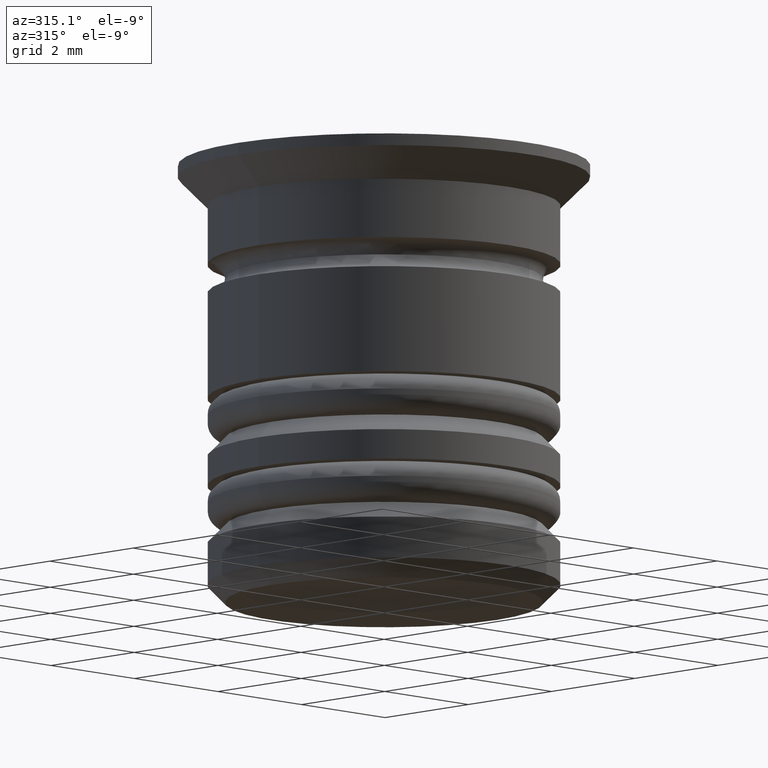
[diagram: clean part render]
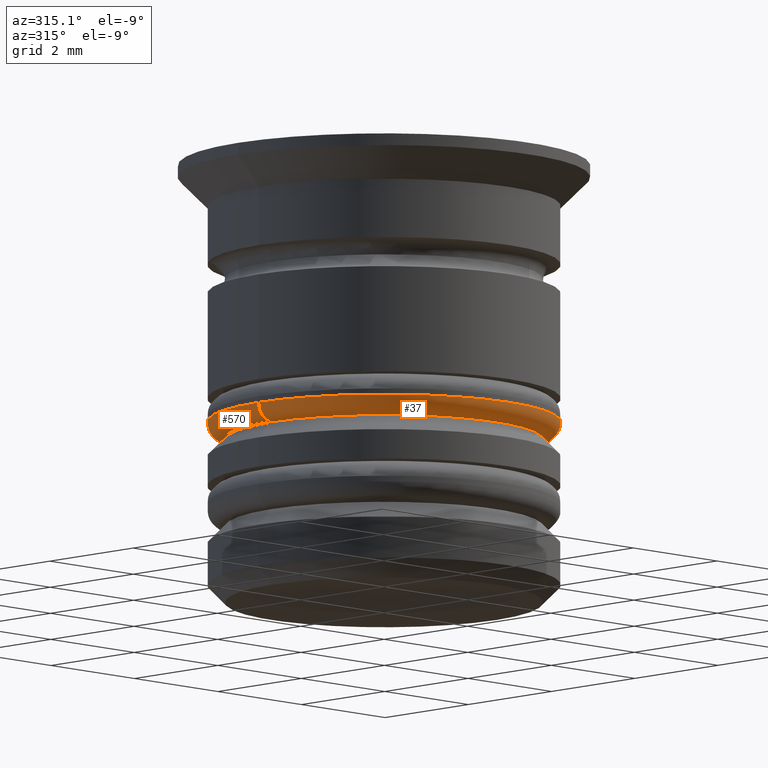
[diagram: same view with one multi-face feature highlighted, each face labeled with its STEP entity id]
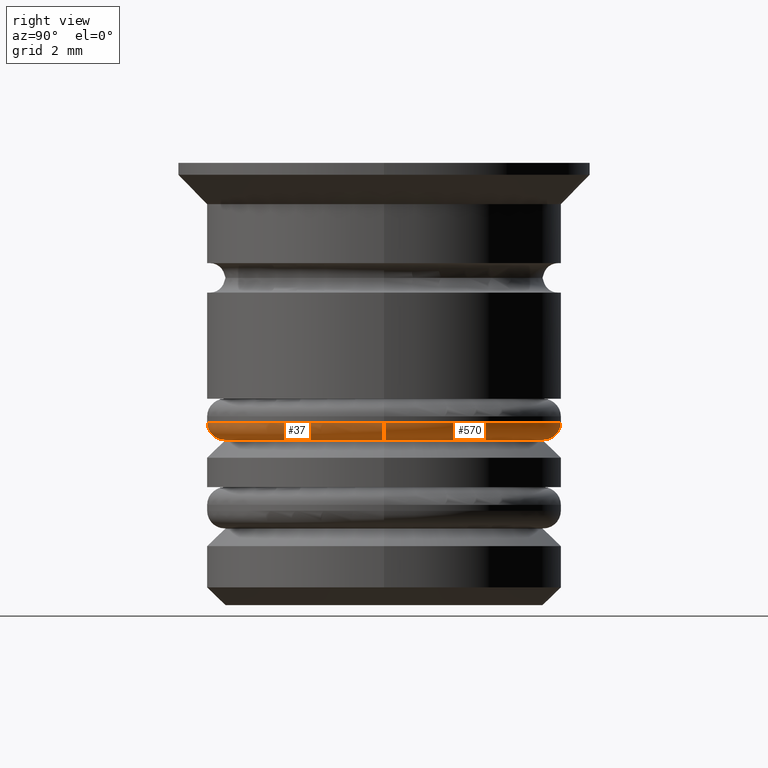
[diagram: same view with one multi-face feature highlighted, each face labeled with its STEP entity id]
A machine part, auxiliary view. The highlighted faces form ONE feature: a constant-radius fillet chain: 2 tangent blend faces with common blend radius 0.3 mm. The faces share edges in the B-rep.
A second angle (right view) of the same feature is appended — it is thin or edge-on in the first view.
Their STEP definitions:
[1] entity #37 (Torus):
#29 = DIRECTION ( 'NONE',  ( 0.000000000000000000, 0.000000000000000000, 1.000000000000000000 ) ) ;
#37 = ADVANCED_FACE ( 'NONE', ( #575 ), #991, .T. ) ;
#165 = CARTESIAN_POINT ( 'NONE',  ( 2.700000000000001510, 0.000000000000000000, -4.400000000000006573 ) ) ;
#171 = CARTESIAN_POINT ( 'NONE',  ( 3.000000000000001332, 0.000000000000000000, -4.400000000000006573 ) ) ;
#188 = ORIENTED_EDGE ( 'NONE', *, *, #632, .F. ) ;
#203 = AXIS2_PLACEMENT_3D ( 'NONE', #165, #968, #447 ) ;
#234 = CIRCLE ( 'NONE', #1143, 0.2999999999999999334 ) ;
#323 = AXIS2_PLACEMENT_3D ( 'NONE', #1787, #642, #1199 ) ;
#350 = AXIS2_PLACEMENT_3D ( 'NONE', #1290, #29, #1024 ) ;
#447 = DIRECTION ( 'NONE',  ( 0.000000000000000000, 0.000000000000000000, -1.000000000000000000 ) ) ;
#459 = VERTEX_POINT ( 'NONE', #899 ) ;
#487 = CARTESIAN_POINT ( 'NONE',  ( -2.700000000000001510, 3.306546357697855212E-16, -4.400000000000006573 ) ) ;
#549 = EDGE_CURVE ( 'NONE', #1063, #812, #234, .T. ) ;
#568 = DIRECTION ( 'NONE',  ( 1.000000000000000000, 0.000000000000000000, 0.000000000000000000 ) ) ;
#575 = FACE_OUTER_BOUND ( 'NONE', #1696, .T. ) ;
#594 = DIRECTION ( 'NONE',  ( 0.000000000000000000, 0.000000000000000000, 1.000000000000000000 ) ) ;
#626 = ORIENTED_EDGE ( 'NONE', *, *, #549, .F. ) ;
#632 = EDGE_CURVE ( 'NONE', #459, #1063, #785, .T. ) ;
#642 = DIRECTION ( 'NONE',  ( -0.000000000000000000, -0.000000000000000000, -1.000000000000000000 ) ) ;
#707 = CARTESIAN_POINT ( 'NONE',  ( 0.000000000000000000, 0.000000000000000000, -4.400000000000006573 ) ) ;
#756 = EDGE_CURVE ( 'NONE', #459, #1687, #1570, .T. ) ;
#784 = ORIENTED_EDGE ( 'NONE', *, *, #986, .F. ) ;
#785 = CIRCLE ( 'NONE', #323, 2.700000000000001510 ) ;
#812 = VERTEX_POINT ( 'NONE', #1118 ) ;
#899 = CARTESIAN_POINT ( 'NONE',  ( 2.700000000000001510, 0.000000000000000000, -4.700000000000006395 ) ) ;
#968 = DIRECTION ( 'NONE',  ( 0.000000000000000000, -1.000000000000000000, 0.000000000000000000 ) ) ;
#986 = EDGE_CURVE ( 'NONE', #812, #1687, #1715, .T. ) ;
#991 = TOROIDAL_SURFACE ( 'NONE', #350, 2.700000000000001510, 0.2999999999999999889 ) ;
#1024 = DIRECTION ( 'NONE',  ( 1.000000000000000000, 0.000000000000000000, 0.000000000000000000 ) ) ;
#1063 = VERTEX_POINT ( 'NONE', #1462 ) ;
#1118 = CARTESIAN_POINT ( 'NONE',  ( -3.000000000000001332, 3.673940397442061347E-16, -4.400000000000006573 ) ) ;
#1143 = AXIS2_PLACEMENT_3D ( 'NONE', #487, #1453, #1630 ) ;
#1199 = DIRECTION ( 'NONE',  ( 1.000000000000000000, 0.000000000000000000, 0.000000000000000000 ) ) ;
#1206 = AXIS2_PLACEMENT_3D ( 'NONE', #707, #594, #568 ) ;
#1290 = CARTESIAN_POINT ( 'NONE',  ( 0.000000000000000000, 0.000000000000000000, -4.400000000000006573 ) ) ;
#1376 = ORIENTED_EDGE ( 'NONE', *, *, #756, .T. ) ;
#1453 = DIRECTION ( 'NONE',  ( 1.224646799147353207E-16, 1.000000000000000000, -0.000000000000000000 ) ) ;
#1462 = CARTESIAN_POINT ( 'NONE',  ( -2.700000000000001510, 3.490243377569958033E-16, -4.700000000000006395 ) ) ;
#1570 = CIRCLE ( 'NONE', #203, 0.2999999999999999334 ) ;
#1630 = DIRECTION ( 'NONE',  ( -1.000000000000000000, 1.224646799147353207E-16, 0.000000000000000000 ) ) ;
#1687 = VERTEX_POINT ( 'NONE', #171 ) ;
#1696 = EDGE_LOOP ( 'NONE', ( #626, #188, #1376, #784 ) ) ;
#1715 = CIRCLE ( 'NONE', #1206, 3.000000000000001332 ) ;
#1787 = CARTESIAN_POINT ( 'NONE',  ( 0.000000000000000000, 0.000000000000000000, -4.700000000000006395 ) ) ;
[2] entity #570 (Torus):
#31 = TOROIDAL_SURFACE ( 'NONE', #1048, 2.700000000000001510, 0.2999999999999999889 ) ;
#77 = EDGE_CURVE ( 'NONE', #1687, #812, #605, .T. ) ;
#79 = DIRECTION ( 'NONE',  ( 1.000000000000000000, 0.000000000000000000, 0.000000000000000000 ) ) ;
#165 = CARTESIAN_POINT ( 'NONE',  ( 2.700000000000001510, 0.000000000000000000, -4.400000000000006573 ) ) ;
#171 = CARTESIAN_POINT ( 'NONE',  ( 3.000000000000001332, 0.000000000000000000, -4.400000000000006573 ) ) ;
#193 = EDGE_CURVE ( 'NONE', #1063, #459, #1408, .T. ) ;
#199 = CARTESIAN_POINT ( 'NONE',  ( 0.000000000000000000, 0.000000000000000000, -4.400000000000006573 ) ) ;
#203 = AXIS2_PLACEMENT_3D ( 'NONE', #165, #968, #447 ) ;
#234 = CIRCLE ( 'NONE', #1143, 0.2999999999999999334 ) ;
#290 = ORIENTED_EDGE ( 'NONE', *, *, #193, .F. ) ;
#341 = DIRECTION ( 'NONE',  ( 0.000000000000000000, 0.000000000000000000, 1.000000000000000000 ) ) ;
#375 = ORIENTED_EDGE ( 'NONE', *, *, #77, .F. ) ;
#447 = DIRECTION ( 'NONE',  ( 0.000000000000000000, 0.000000000000000000, -1.000000000000000000 ) ) ;
#459 = VERTEX_POINT ( 'NONE', #899 ) ;
#474 = CARTESIAN_POINT ( 'NONE',  ( 0.000000000000000000, 0.000000000000000000, -4.400000000000006573 ) ) ;
#487 = CARTESIAN_POINT ( 'NONE',  ( -2.700000000000001510, 3.306546357697855212E-16, -4.400000000000006573 ) ) ;
#549 = EDGE_CURVE ( 'NONE', #1063, #812, #234, .T. ) ;
#570 = ADVANCED_FACE ( 'NONE', ( #744 ), #31, .T. ) ;
#605 = CIRCLE ( 'NONE', #931, 3.000000000000001332 ) ;
#744 = FACE_OUTER_BOUND ( 'NONE', #1169, .T. ) ;
#756 = EDGE_CURVE ( 'NONE', #459, #1687, #1570, .T. ) ;
#812 = VERTEX_POINT ( 'NONE', #1118 ) ;
#891 = DIRECTION ( 'NONE',  ( 1.000000000000000000, 0.000000000000000000, 0.000000000000000000 ) ) ;
#899 = CARTESIAN_POINT ( 'NONE',  ( 2.700000000000001510, 0.000000000000000000, -4.700000000000006395 ) ) ;
#931 = AXIS2_PLACEMENT_3D ( 'NONE', #199, #341, #79 ) ;
#935 = ORIENTED_EDGE ( 'NONE', *, *, #756, .F. ) ;
#948 = CARTESIAN_POINT ( 'NONE',  ( 0.000000000000000000, 0.000000000000000000, -4.700000000000006395 ) ) ;
#968 = DIRECTION ( 'NONE',  ( 0.000000000000000000, -1.000000000000000000, 0.000000000000000000 ) ) ;
#1031 = DIRECTION ( 'NONE',  ( 0.000000000000000000, 0.000000000000000000, 1.000000000000000000 ) ) ;
#1048 = AXIS2_PLACEMENT_3D ( 'NONE', #474, #1031, #891 ) ;
#1063 = VERTEX_POINT ( 'NONE', #1462 ) ;
#1118 = CARTESIAN_POINT ( 'NONE',  ( -3.000000000000001332, 3.673940397442061347E-16, -4.400000000000006573 ) ) ;
#1143 = AXIS2_PLACEMENT_3D ( 'NONE', #487, #1453, #1630 ) ;
#1169 = EDGE_LOOP ( 'NONE', ( #290, #1551, #375, #935 ) ) ;
#1171 = AXIS2_PLACEMENT_3D ( 'NONE', #948, #1523, #1503 ) ;
#1408 = CIRCLE ( 'NONE', #1171, 2.700000000000001510 ) ;
#1453 = DIRECTION ( 'NONE',  ( 1.224646799147353207E-16, 1.000000000000000000, -0.000000000000000000 ) ) ;
#1462 = CARTESIAN_POINT ( 'NONE',  ( -2.700000000000001510, 3.490243377569958033E-16, -4.700000000000006395 ) ) ;
#1503 = DIRECTION ( 'NONE',  ( 1.000000000000000000, 0.000000000000000000, 0.000000000000000000 ) ) ;
#1523 = DIRECTION ( 'NONE',  ( -0.000000000000000000, -0.000000000000000000, -1.000000000000000000 ) ) ;
#1551 = ORIENTED_EDGE ( 'NONE', *, *, #549, .T. ) ;
#1570 = CIRCLE ( 'NONE', #203, 0.2999999999999999334 ) ;
#1630 = DIRECTION ( 'NONE',  ( -1.000000000000000000, 1.224646799147353207E-16, 0.000000000000000000 ) ) ;
#1687 = VERTEX_POINT ( 'NONE', #171 ) ;